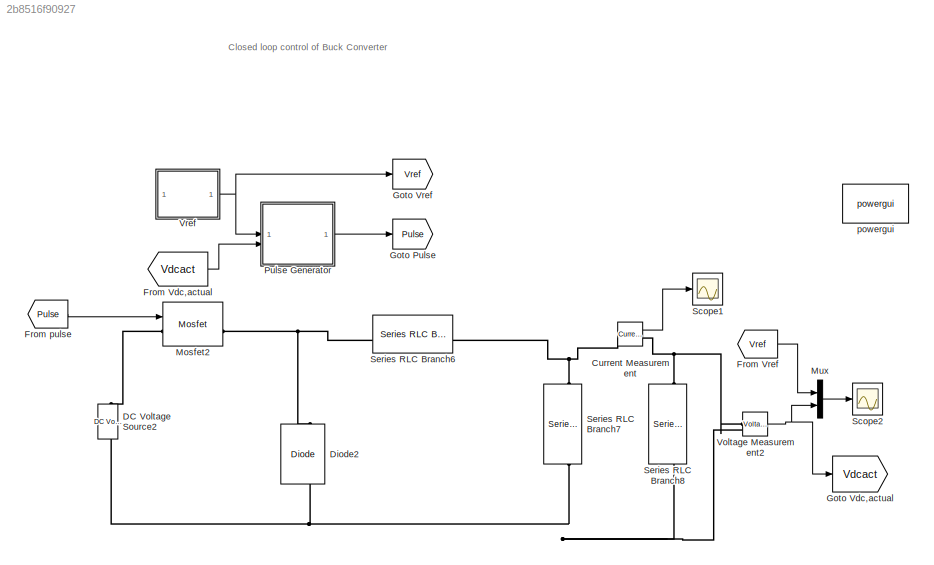
MODEL slx_2b8516f90927
KIND model
CONFIG AbsTol = auto
CONFIG EnableMultiTasking = off
CONFIG FixedStep = auto
CONFIG MaxStep = auto
CONFIG MinStep = auto
CONFIG RelTol = 1e-3
CONFIG SampleTimeConstraint = Unconstrained
CONFIG SolverName = VariableStepAuto
CONFIG StartTime = 0.0
CONFIG StopTime = 100
BLOCK [Reference] Current Measurement  REF=spsCurrentMeasurementLib/Current Measurement
  SourceBlock = spsCurrentMeasurementLib/Current Measurement
  SourceType = Current Measurement
BLOCK [Reference] DC Voltage Source2  REF=spsDCVoltageSourceLib/DC Voltage Source
  NameLocation = right
  SourceBlock = spsDCVoltageSourceLib/DC Voltage Source
  SourceType = DC Voltage Source
BLOCK [Reference] Diode2  REF=spsDiodeLib/Diode
  NameLocation = right
  SourceBlock = spsDiodeLib/Diode
  SourceType = Diode
BLOCK [From] From Vdc,actual
  GotoTag = Vdcact
BLOCK [From] From Vref
  GotoTag = Vref
BLOCK [From] From pulse
  GotoTag = Pulse
BLOCK [Goto] Goto Pulse
  GotoTag = Pulse
BLOCK [Goto] Goto Vdc,actual
  GotoTag = Vdcact
BLOCK [Goto] Goto Vref
  GotoTag = Vref
BLOCK [Reference] Mosfet2  REF=spsMosfetLib/Mosfet
  SourceBlock = spsMosfetLib/Mosfet
  SourceType = Mosfet
BLOCK [Mux] Mux
  DisplayOption = bar
  Inputs = 2
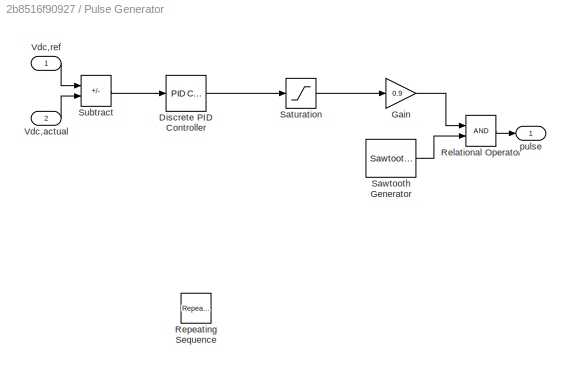
BLOCK [SubSystem] Pulse Generator
BLOCK [Reference] Pulse Generator/Discrete PID Controller  REF=slpidlib/PID Controller
  SourceBlock = slpidlib/PID Controller
  SourceType = PID 1dof
BLOCK [Gain] Pulse Generator/Gain
  Gain = 0.9
BLOCK [RelationalOperator] Pulse Generator/Relational Operator
  InputSameDT = off
  OutDataTypeStr = boolean
  RndMeth = Simplest
BLOCK [Reference] Pulse Generator/Repeating Sequence  REF=simulink/Sources/Repeating
Sequence
  SourceBlock = simulink/Sources/Repeating\nSequence
  SourceType = Repeating table
BLOCK [Saturate] Pulse Generator/Saturation
  LowerLimit = -1
  UpperLimit = 1
BLOCK [Reference] Pulse Generator/Sawtooth Generator  REF=spsSawtoothGeneratorLib/Sawtooth
Generator
  SourceBlock = spsSawtoothGeneratorLib/Sawtooth\nGenerator
  SourceType = Sawtooth Generator
BLOCK [Sum] Pulse Generator/Subtract
  IconShape = rectangular
  Inputs = +-
BLOCK [Inport] Pulse Generator/Vdc,actual
  Port = 2
BLOCK [Inport] Pulse Generator/Vdc,ref
BLOCK [Outport] Pulse Generator/pulse
BLOCK [Scope] Scope1
  Floating = off
  NumInputPorts = 1
  ScopeSpecificationString = Simulink.scopes.TimeScopeBlockCfg('CurrentConfiguration', extmgr.ConfigurationSet(extmgr.Configuration('Core','General UI',true,'FigureColor',[1 1 1]),extmgr.Configuration('Core','Source UI',true),extmgr.Configuration('Sources','WiredSimulink',true,'DataLoggingVariableName','ScopeData1'),extmgr.Configuration('Visuals','Time Domain',true,'SerializedDisplays',{struct('MinYLimReal','-62.50723','MaxYL...<+1570ch>
BLOCK [Scope] Scope2
  Floating = off
  NumInputPorts = 1
  ScopeSpecificationString = Simulink.scopes.TimeScopeBlockCfg('CurrentConfiguration', extmgr.ConfigurationSet(extmgr.Configuration('Core','General UI',true,'FigureColor',[1 1 1]),extmgr.Configuration('Core','Source UI',true),extmgr.Configuration('Sources','WiredSimulink',true,'DataLoggingVariableName','ScopeData1'),extmgr.Configuration('Visuals','Time Domain',true,'SerializedDisplays',{struct('MinYLimReal','75.43143','MaxYLi...<+1609ch>
BLOCK [Reference] Series RLC Branch6  REF=spsSeriesRLCBranchLib/Series RLC Branch
  NameLocation = top
  SourceBlock = spsSeriesRLCBranchLib/Series RLC Branch
  SourceType = Series RLC Branch
BLOCK [Reference] Series RLC Branch7  REF=spsSeriesRLCBranchLib/Series RLC Branch
  NameLocation = left
  SourceBlock = spsSeriesRLCBranchLib/Series RLC Branch
  SourceType = Series RLC Branch
BLOCK [Reference] Series RLC Branch8  REF=spsSeriesRLCBranchLib/Series RLC Branch
  NameLocation = left
  SourceBlock = spsSeriesRLCBranchLib/Series RLC Branch
  SourceType = Series RLC Branch
BLOCK [Reference] Voltage Measurement2  REF=spsVoltageMeasurementLib/Voltage Measurement
  SourceBlock = spsVoltageMeasurementLib/Voltage Measurement
  SourceType = Voltage Measurement
  UserDataPersistent = on
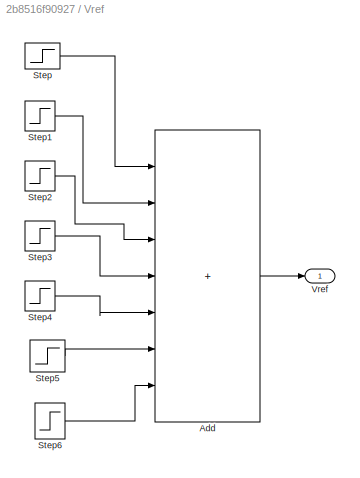
BLOCK [SubSystem] Vref
BLOCK [Sum] Vref/Add
  IconShape = rectangular
  Inputs = +++++++
BLOCK [Step] Vref/Step
  After = 80
  Before = 40
  SampleTime = 0
  Time = 10
BLOCK [Step] Vref/Step1
  After = -50
  SampleTime = 0
  Time = 20
BLOCK [Step] Vref/Step2
  After = 10
  SampleTime = 0
  Time = 30
BLOCK [Step] Vref/Step3
  After = 10
  SampleTime = 0
  Time = 40
BLOCK [Step] Vref/Step4
  After = 10
  SampleTime = 0
  Time = 50
BLOCK [Step] Vref/Step5
  After = 10
  SampleTime = 0
  Time = 60
BLOCK [Step] Vref/Step6
  After = 10
  SampleTime = 0
  Time = 70
BLOCK [Outport] Vref/Vref
BLOCK [Reference] powergui  REF=spspowerguiLib/powergui
  Priority = 1
  SourceBlock = spspowerguiLib/powergui
  SourceType = PSB option menu block
ANNOTATION (root): Closed loop control of Buck Converter
LINE Current Measurement:1 -> Scope1:1
LINE From Vdc,actual:1 -> Pulse Generator:2
LINE From Vref:1 -> Mux:1
LINE From pulse:1 -> Mosfet2:1
LINE Mux:1 -> Scope2:1
LINE Pulse Generator/Discrete PID Controller:1 -> Pulse Generator/Saturation:1
LINE Pulse Generator/Gain:1 -> Pulse Generator/Relational Operator:1
LINE Pulse Generator/Relational Operator:1 -> Pulse Generator/pulse:1
LINE Pulse Generator/Saturation:1 -> Pulse Generator/Gain:1
LINE Pulse Generator/Sawtooth Generator:1 -> Pulse Generator/Relational Operator:2
LINE Pulse Generator/Subtract:1 -> Pulse Generator/Discrete PID Controller:1
LINE Pulse Generator/Vdc,actual:1 -> Pulse Generator/Subtract:2
LINE Pulse Generator/Vdc,ref:1 -> Pulse Generator/Subtract:1
LINE Pulse Generator:1 -> Goto Pulse:1
NET Voltage Measurement2:1 -> Goto Vdc,actual:1, Mux:2
LINE Vref/Add:1 -> Vref/Vref:1
LINE Vref/Step1:1 -> Vref/Add:2
LINE Vref/Step2:1 -> Vref/Add:3
LINE Vref/Step3:1 -> Vref/Add:4
LINE Vref/Step4:1 -> Vref/Add:5
LINE Vref/Step5:1 -> Vref/Add:6
LINE Vref/Step6:1 -> Vref/Add:7
LINE Vref/Step:1 -> Vref/Add:1
NET Vref:1 -> Goto Vref:1, Pulse Generator:1
PNET net1: Current Measurement:LConn1 -- Series RLC Branch6:LConn1 -- Series RLC Branch7:LConn1
PNET net2: Current Measurement:RConn1 -- Series RLC Branch8:LConn1 -- Voltage Measurement2:LConn1
PNET net3: DC Voltage Source2:LConn1 -- Diode2:LConn1 -- Series RLC Branch7:RConn1 -- Series RLC Branch8:RConn1 -- Voltage Measurement2:LConn2
PLINE DC Voltage Source2:RConn1 -- Mosfet2:LConn1
PNET net4: Diode2:RConn1 -- Mosfet2:RConn1 -- Series RLC Branch6:RConn1
note: NET lines group one-source signal fan-out (src -> all destinations, sorted); 1:1 wires keep LINE; PNET lines group multi-terminal physical nets as a canonical sorted terminal list (undirected conserving connections); 2-terminal nets keep the pairwise PLINE form
